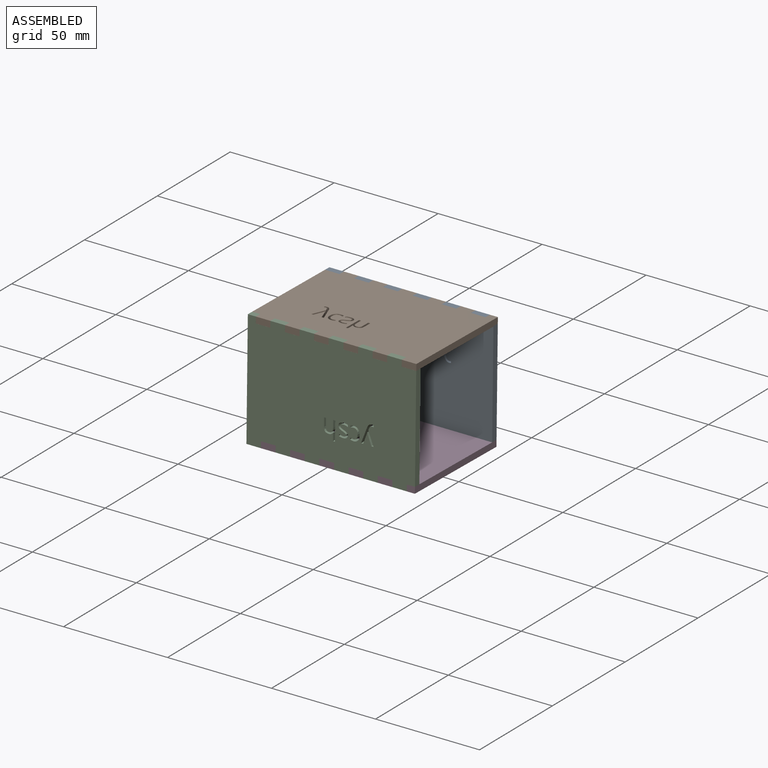
[diagram: assembled view]
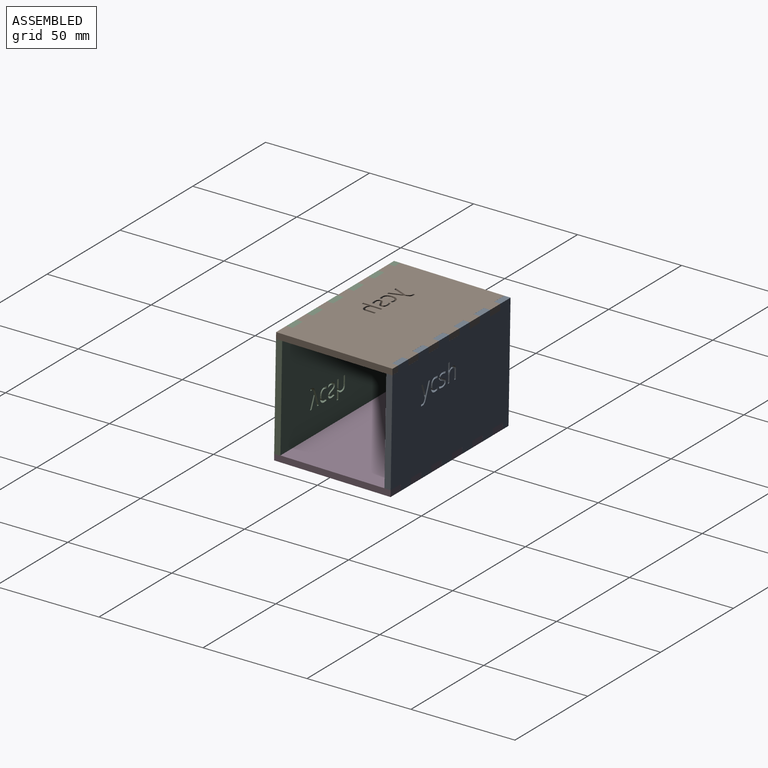
[diagram: assembled view, second angle]
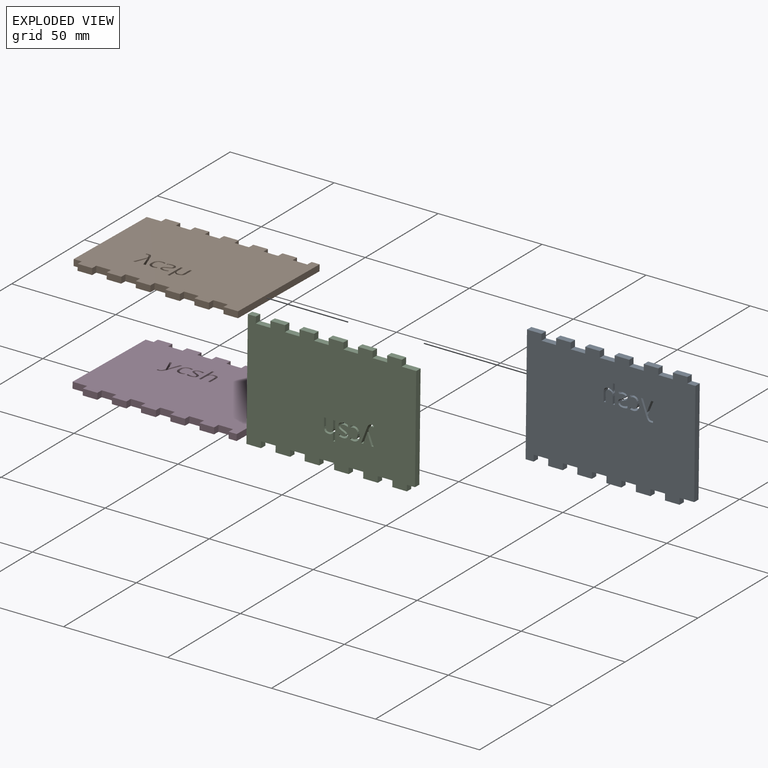
[diagram: exploded view]
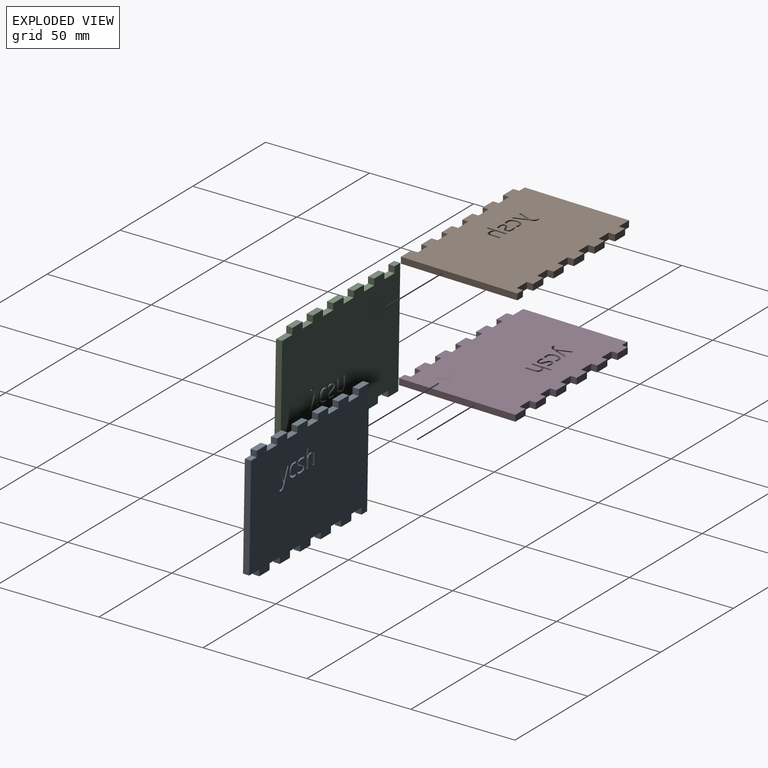
[diagram: exploded view, second angle]
ASSEMBLY  parts=4 mates=3
PART A: 124 faces, bbox 81x56x3 mm
  f0: plane 6.46x3mm, normal (0.93,0.37,0), area 20.9mm2, adj f1,f121,f122,f123
  f1: plane 3x1.04mm, normal (0,-1,0), area 3.1mm2, adj f0,f2,f122,f123
  f2: plane 3.66x3mm, normal (-0.93,-0.36,0), area 11.8mm2, adj f1,f3,f122,f123
  f3: extruded ~3x1.81mm, area 5.7mm2, adj f2,f4,f122,f123
  f4: plane 3x0.05mm, normal (0,-1,0), area 0.1mm2, adj f3,f5,f122,f123
  f5: extruded ~3x1.02mm, area 3.2mm2, adj f4,f6,f122,f123
  f6: extruded ~4.45x3mm, area 14.2mm2, adj f5,f7,f122,f123
  f7: plane 3x1.04mm, normal (0,-1,0), area 3.1mm2, adj f6,f8,f122,f123
  f8: plane 7.31x3mm, normal (-0.94,0.35,0), area 23.4mm2, adj f7,f9,f122,f123
  f9: extruded ~3x1.54mm, area 5.5mm2, adj f8,f10,f122,f123
  f10: extruded ~3x1.34mm, area 4.3mm2, adj f9,f11,f122,f123
  f11: extruded ~3x0.88mm, area 2.7mm2, adj f10,f12,f122,f123
  f12: plane 3x0.78mm, normal (1,0,0), area 2.3mm2, adj f11,f13,f122,f123
  f13: extruded ~3x0.72mm, area 2.2mm2, adj f12,f14,f122,f123
  f14: extruded ~3x1.43mm, area 5.9mm2, adj f13,f121,f122,f123
  f15: extruded ~3x1.62mm, area 5mm2, adj f16,f117,f122,f123
  f16: extruded ~3x2.16mm, area 7.2mm2, adj f15,f17,f122,f123
  f17: extruded ~3x2.43mm, area 7.8mm2, adj f16,f18,f122,f123
  f18: extruded ~3x2.49mm, area 8mm2, adj f17,f19,f122,f123
  f19: extruded ~3x2.21mm, area 7.4mm2, adj f18,f20,f122,f123
  f20: extruded ~3x0.93mm, area 2.8mm2, adj f19,f21,f122,f123
  f21: extruded ~3x0.73mm, area 2.3mm2, adj f20,f22,f122,f123
  f22: plane 3x0.83mm, normal (-0.94,0.34,0), area 2.6mm2, adj f21,f23,f122,f123
  f23: extruded ~3x0.7mm, area 2.2mm2, adj f22,f24,f122,f123
  f24: extruded ~3x0.67mm, area 2mm2, adj f23,f25,f122,f123
  f25: extruded ~3x2.5mm, area 10.9mm2, adj f24,f26,f122,f123
  f26: extruded ~3x1.82mm, area 5.7mm2, adj f25,f27,f122,f123
  f27: extruded ~3x1.41mm, area 4.8mm2, adj f26,f28,f122,f123
  f28: extruded ~3x1.65mm, area 5.1mm2, adj f27,f117,f122,f123
  f29: extruded ~3x1.06mm, area 3.5mm2, adj f30,f118,f122,f123
  f30: extruded ~3x1.38mm, area 4.8mm2, adj f29,f31,f122,f123
  f31: extruded ~3x1.87mm, area 5.9mm2, adj f30,f32,f122,f123
  f32: extruded ~3x1.99mm, area 6.2mm2, adj f31,f33,f122,f123
  f33: plane 3x0.9mm, normal (1,0,0), area 2.7mm2, adj f32,f34,f122,f123
  f34: extruded ~3x0.99mm, area 3.2mm2, adj f33,f35,f122,f123
  f35: extruded ~3x1.02mm, area 3.1mm2, adj f34,f36,f122,f123
  f36: extruded ~3x1.17mm, area 3.6mm2, adj f35,f37,f122,f123
  f37: extruded ~3x0.74mm, area 2.7mm2, adj f36,f38,f122,f123
  f38: extruded ~3x0.64mm, area 2.2mm2, adj f37,f39,f122,f123
  f39: extruded ~3x1.27mm, area 4.3mm2, adj f38,f40,f122,f123
  f40: extruded ~3x1.27mm, area 4.2mm2, adj f39,f41,f122,f123
  f41: extruded ~3x0.57mm, area 2.4mm2, adj f40,f42,f122,f123
  f42: extruded ~3x0.75mm, area 2.4mm2, adj f41,f43,f122,f123
  f43: extruded ~3x1.24mm, area 4.4mm2, adj f42,f44,f122,f123
  f44: extruded ~3x1.75mm, area 5.5mm2, adj f43,f45,f122,f123
  f45: extruded ~3x2.03mm, area 6.3mm2, adj f44,f46,f122,f123
  f46: plane 3x0.79mm, normal (-0.92,0.4,0), area 2.6mm2, adj f45,f47,f122,f123
  f47: extruded ~3x1.75mm, area 5.4mm2, adj f46,f48,f122,f123
  f48: extruded ~3x1.04mm, area 3.2mm2, adj f47,f49,f122,f123
  f49: extruded ~3x0.6mm, area 2.2mm2, adj f48,f50,f122,f123
  f50: extruded ~3x0.44mm, area 1.4mm2, adj f49,f51,f122,f123
  f51: extruded ~3x0.42mm, area 1.7mm2, adj f50,f52,f122,f123
  f52: extruded ~3x1.13mm, area 3.7mm2, adj f51,f118,f122,f123
  f53: plane 3x0.97mm, normal (0,1,0), area 2.9mm2, adj f54,f119,f122,f123
  f54: plane 4.15x3mm, normal (1,0,0), area 12.5mm2, adj f53,f55,f122,f123
  f55: extruded ~3x1.17mm, area 3.8mm2, adj f54,f56,f122,f123
  f56: extruded ~3x1.12mm, area 3.7mm2, adj f55,f57,f122,f123
  f57: extruded ~3x1.48mm, area 4.9mm2, adj f56,f58,f122,f123
  f58: extruded ~3x1.8mm, area 5.7mm2, adj f57,f59,f122,f123
  f59: plane 3.36x3mm, normal (-1,0,0), area 10.1mm2, adj f58,f60,f122,f123
  f60: plane 3x0.97mm, normal (0,1,0), area 2.9mm2, adj f59,f61,f122,f123
  f61: plane 9.12x3mm, normal (1,0,0), area 27.3mm2, adj f60,f62,f122,f123
  f62: plane 3x0.97mm, normal (0,-1,0), area 2.9mm2, adj f61,f63,f122,f123
  f63: plane 3x2.76mm, normal (-1,0,0), area 8.3mm2, adj f62,f64,f122,f123
  f64: extruded ~3x0.83mm, area 2.5mm2, adj f63,f65,f122,f123
  f65: plane 3x0.06mm, normal (0,-1,0), area 0.2mm2, adj f64,f66,f122,f123
  f66: extruded ~3x0.82mm, area 3.3mm2, adj f65,f67,f122,f123
  f67: extruded ~3x1.21mm, area 3.7mm2, adj f66,f68,f122,f123
  f68: extruded ~3x1.77mm, area 5.7mm2, adj f67,f69,f122,f123
  f69: extruded ~3x1.78mm, area 5.8mm2, adj f68,f119,f122,f123
  f70: plane 3x2.83mm, normal (-1,0,0), area 8.5mm2, adj f71,f120,f122,f123
  f71: plane 3.86x3mm, normal (0,1,0), area 11.6mm2, adj f70,f72,f122,f123
  f72: plane 50.18x3mm, normal (-1,0,0), area 150.5mm2, adj f71,f73,f122,f123
  f73: plane 7x3mm, normal (0,-1,0), area 21mm2, adj f72,f74,f122,f123
  f74: plane 3x3mm, normal (-1,0,0), area 9mm2, adj f73,f75,f122,f123
  f75: plane 7x3mm, normal (0,-1,0), area 21mm2, adj f74,f76,f122,f123
  f76: plane 3x3mm, normal (1,0,0), area 9mm2, adj f75,f77,f122,f123
  f77: plane 7x3mm, normal (0,-1,0), area 21mm2, adj f76,f78,f122,f123
  f78: plane 3x3mm, normal (-1,0,0), area 9mm2, adj f77,f79,f122,f123
  f79: plane 7x3mm, normal (0,-1,0), area 21mm2, adj f78,f80,f122,f123
  f80: plane 3x3mm, normal (1,0,0), area 9mm2, adj f79,f81,f122,f123
  f81: plane 7x3mm, normal (0,-1,0), area 21mm2, adj f80,f82,f122,f123
  f82: plane 3x3mm, normal (-1,0,0), area 9mm2, adj f81,f83,f122,f123
  f83: plane 7.14x3mm, normal (0,-1,0), area 21.4mm2, adj f82,f84,f122,f123
  f84: plane 3x3mm, normal (1,0,0), area 9mm2, adj f83,f85,f122,f123
  f85: plane 7x3mm, normal (0,-1,0), area 21mm2, adj f84,f86,f122,f123
  f86: plane 3x3mm, normal (-1,0,0), area 9mm2, adj f85,f87,f122,f123
  f87: plane 7x3mm, normal (0,-1,0), area 21mm2, adj f86,f88,f122,f123
  f88: plane 3x3mm, normal (1,0,0), area 9mm2, adj f87,f89,f122,f123
  f89: plane 7x3mm, normal (0,-1,0), area 21mm2, adj f88,f90,f122,f123
  f90: plane 3x3mm, normal (-1,0,0), area 9mm2, adj f89,f91,f122,f123
  f91: plane 7x3mm, normal (0,-1,0), area 21mm2, adj f90,f92,f122,f123
  f92: plane 3x3mm, normal (1,0,0), area 9mm2, adj f91,f93,f122,f123
  f93: plane 7x3mm, normal (0,-1,0), area 21mm2, adj f92,f94,f122,f123
  f94: plane 3x3mm, normal (-1,0,0), area 9mm2, adj f93,f95,f122,f123
  f95: plane 3.86x3mm, normal (0,-1,0), area 11.6mm2, adj f94,f96,f122,f123
  f96: plane 56x3mm, normal (1,0,0), area 168mm2, adj f95,f97,f122,f123
  f97: plane 7x3mm, normal (0,1,0), area 21mm2, adj f96,f98,f122,f123
  f98: plane 3x2.98mm, normal (-1,0,0), area 9mm2, adj f97,f99,f122,f123
  f99: plane 7x3mm, normal (0,1,0), area 21mm2, adj f98,f100,f122,f123
  f100: plane 3x2.97mm, normal (1,0,0), area 8.9mm2, adj f99,f101,f122,f123
  f101: plane 7x3mm, normal (0,1,0), area 21mm2, adj f100,f102,f122,f123
  f102: plane 3x2.95mm, normal (-1,0,0), area 8.9mm2, adj f101,f103,f122,f123
  f103: plane 7x3mm, normal (0,1,0), area 21mm2, adj f102,f104,f122,f123
  f104: plane 3x2.94mm, normal (1,0,0), area 8.8mm2, adj f103,f105,f122,f123
  f105: plane 7x3mm, normal (0,1,0), area 21mm2, adj f104,f106,f122,f123
  f106: plane 3x2.92mm, normal (-1,0,0), area 8.8mm2, adj f105,f107,f122,f123
  f107: plane 7.14x3mm, normal (0,1,0), area 21.4mm2, adj f106,f108,f122,f123
  f108: plane 3x2.91mm, normal (1,0,0), area 8.7mm2, adj f107,f109,f122,f123
  f109: plane 7x3mm, normal (0,1,0), area 21mm2, adj f108,f110,f122,f123
  f110: plane 3x2.89mm, normal (-1,0,0), area 8.7mm2, adj f109,f111,f122,f123
  f111: plane 7x3mm, normal (0,1,0), area 21mm2, adj f110,f112,f122,f123
  f112: plane 3x2.88mm, normal (1,0,0), area 8.6mm2, adj f111,f113,f122,f123
  f113: plane 7x3mm, normal (0,1,0), area 21mm2, adj f112,f114,f122,f123
  f114: plane 3x2.86mm, normal (-1,0,0), area 8.6mm2, adj f113,f115,f122,f123
  f115: plane 7x3mm, normal (0,1,0), area 21mm2, adj f114,f116,f122,f123
  f116: plane 3x2.85mm, normal (1,0,0), area 8.5mm2, adj f115,f120,f122,f123
  f117: plane 3x0.86mm, normal (-1,0,0), area 2.6mm2, adj f15,f28,f122,f123
  f118: extruded ~3x1.54mm, area 5.3mm2, adj f29,f52,f122,f123
  f119: plane 4.19x3mm, normal (-1,0,0), area 12.6mm2, adj f53,f69,f122,f123
  f120: plane 7x3mm, normal (0,1,0), area 21mm2, adj f70,f116,f122,f123
  f121: plane 3x0.91mm, normal (0.93,-0.37,0), area 2.9mm2, adj f0,f14,f122,f123
  f122: plane 81x56mm, normal (0,0,1), area 4239.4mm2, adj f0,f1,f2,f3,f4,f5,f6,f7
  f123: plane 81x56mm, normal (0,0,-1), area 4239.4mm2, adj f0,f1,f2,f3,f4,f5,f6,f7
PART B: same geometry as A
PART C: same geometry as A
PART D: same geometry as A
PLACE A rot(axis=(0,-0.71,-0.7),180deg) t=(-44.87,-20.41,41.61)mm
PLACE B rot(axis=(1,0,0),179deg) t=(-44.87,-44.92,70.05)mm
PLACE C rot(axis=(0,0.7,-0.71),180deg) t=(-44.87,-70.42,42.49)mm
PLACE D rot(axis=(-1,0,0),1deg) t=(-44.87,-45.91,14.05)mm
MATE fastened C.f74 <-> B.f98  axis (1,0,0) through (-11.37,-71.45,69.01)mm
MATE fastened D.f74 <-> C.f98  axis (-1,0,0) through (-78.37,-72.38,16.01)mm
MATE fastened D.f100 <-> A.f76  axis (1,0,0) through (-18.37,-19.37,15.09)mm
